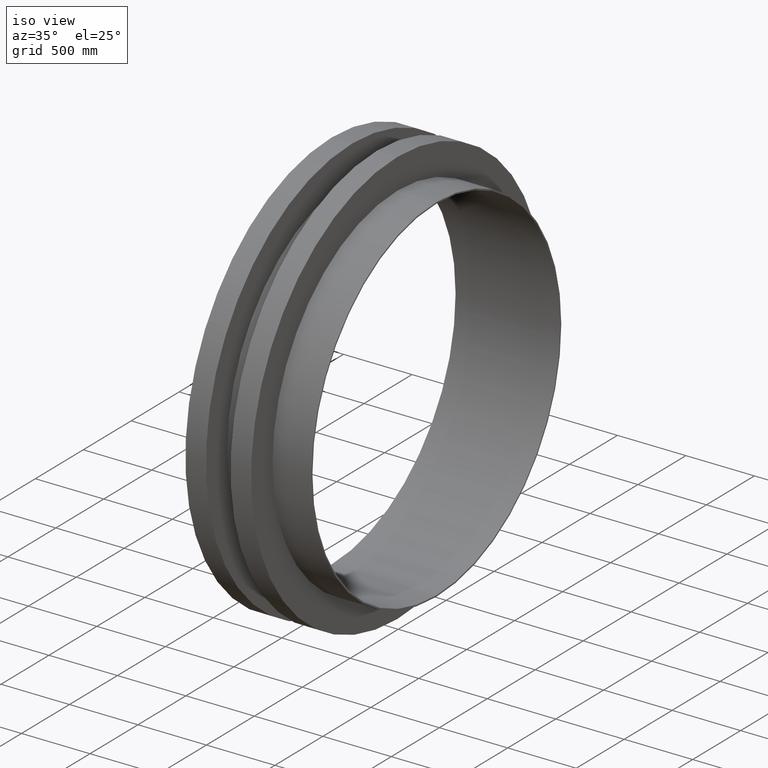
[diagram: clean part render]
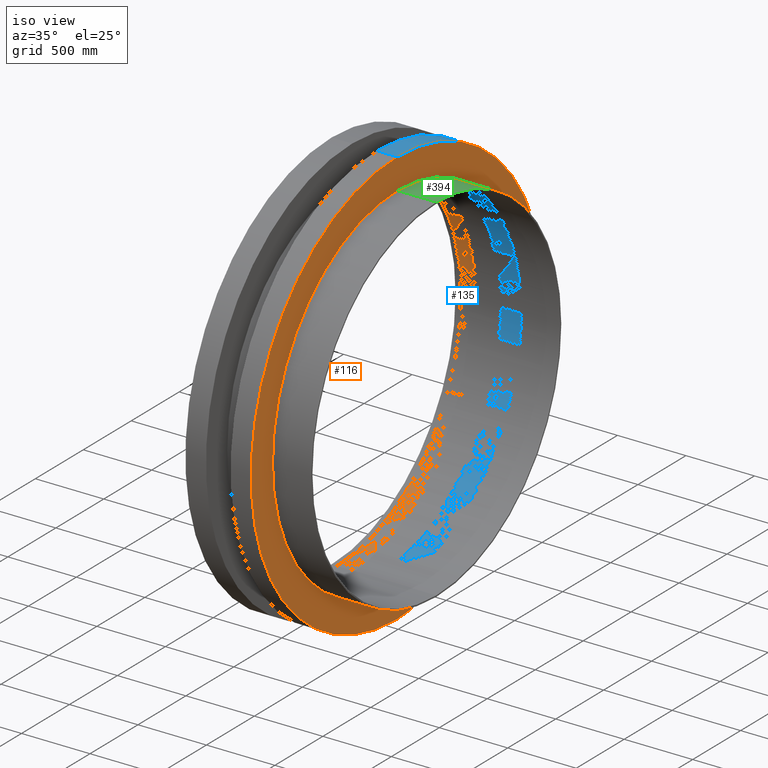
[diagram: same view with three faces highlighted in distinct colors, each labeled with its STEP entity id]
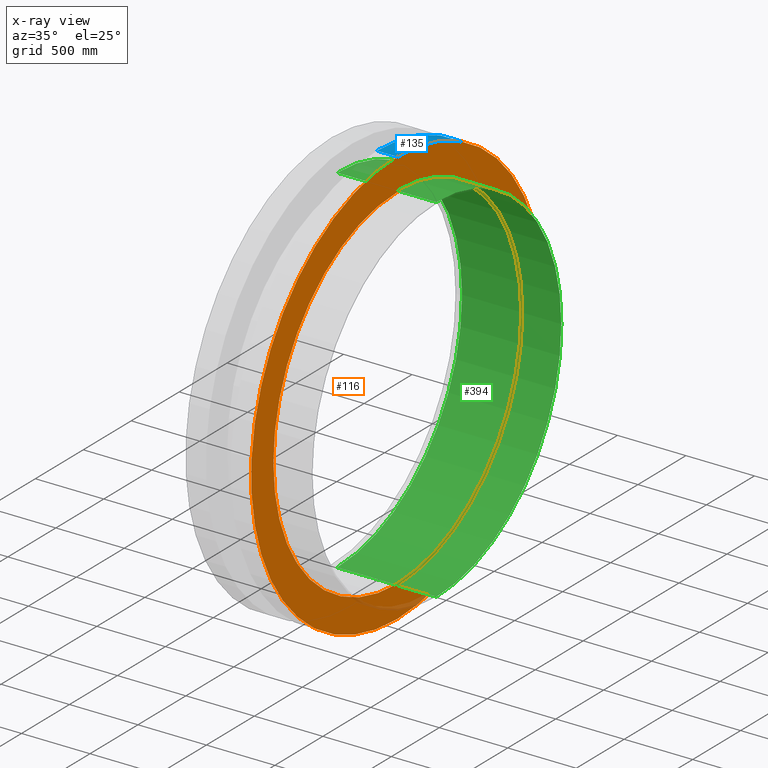
[diagram: x-ray of the same camera — body ghosted, the three highlighted faces saturated]
A machine part, iso view with three faces highlighted in distinct colors.
The next image is the same camera in x-ray (body ghosted, the three faces saturated) — at least one of them is partly hidden behind the body in this view.
Their STEP definitions:

[orange] entity #116 — the highlighted planar face has unit normal (1, 0, 0).
#50 = PLANE ( 'NONE',  #501 ) ;
#85 = VERTEX_POINT ( 'NONE', #159 ) ;
#116 = ADVANCED_FACE ( 'NONE', ( #585, #306 ), #50, .T. ) ;
#119 = EDGE_LOOP ( 'NONE', ( #249, #196 ) ) ;
#146 = AXIS2_PLACEMENT_3D ( 'NONE', #596, #278, #434 ) ;
#147 = VERTEX_POINT ( 'NONE', #366 ) ;
#159 = CARTESIAN_POINT ( 'NONE',  ( -910.0000000000000000, 114.4108509701296157, 1453.768383917999472 ) ) ;
#176 = CIRCLE ( 'NONE', #146, 1292.500000000000000 ) ;
#196 = ORIENTED_EDGE ( 'NONE', *, *, #269, .F. ) ;
#204 = DIRECTION ( 'NONE',  ( 1.000000000000000000, 0.000000000000000000, 0.000000000000000000 ) ) ;
#233 = CIRCLE ( 'NONE', #340, 1525.000000000000000 ) ;
#239 = VERTEX_POINT ( 'NONE', #319 ) ;
#249 = ORIENTED_EDGE ( 'NONE', *, *, #280, .F. ) ;
#269 = EDGE_CURVE ( 'NONE', #239, #147, #176, .T. ) ;
#278 = DIRECTION ( 'NONE',  ( 1.000000000000000000, 0.000000000000000000, 0.000000000000000000 ) ) ;
#280 = EDGE_CURVE ( 'NONE', #147, #239, #372, .T. ) ;
#290 = CIRCLE ( 'NONE', #688, 1525.000000000000000 ) ;
#306 = FACE_OUTER_BOUND ( 'NONE', #597, .T. ) ;
#319 = CARTESIAN_POINT ( 'NONE',  ( -910.0000000000000000, 114.4108509701295873, 1221.268383917999699 ) ) ;
#340 = AXIS2_PLACEMENT_3D ( 'NONE', #500, #671, #346 ) ;
#346 = DIRECTION ( 'NONE',  ( 0.000000000000000000, 0.000000000000000000, -1.000000000000000000 ) ) ;
#366 = CARTESIAN_POINT ( 'NONE',  ( -910.0000000000000000, 114.4108509701294309, -1363.731616082000301 ) ) ;
#372 = CIRCLE ( 'NONE', #484, 1292.500000000000000 ) ;
#423 = ORIENTED_EDGE ( 'NONE', *, *, #627, .T. ) ;
#432 = DIRECTION ( 'NONE',  ( 1.000000000000000000, 0.000000000000000000, 0.000000000000000000 ) ) ;
#434 = DIRECTION ( 'NONE',  ( 0.000000000000000000, 0.000000000000000000, -1.000000000000000000 ) ) ;
#456 = VERTEX_POINT ( 'NONE', #626 ) ;
#465 = DIRECTION ( 'NONE',  ( 1.000000000000000000, 0.000000000000000000, 0.000000000000000000 ) ) ;
#484 = AXIS2_PLACEMENT_3D ( 'NONE', #663, #432, #531 ) ;
#500 = CARTESIAN_POINT ( 'NONE',  ( -910.0000000000000000, 114.4108509701294309, -71.23161608200025796 ) ) ;
#501 = AXIS2_PLACEMENT_3D ( 'NONE', #517, #204, #575 ) ;
#516 = DIRECTION ( 'NONE',  ( 0.000000000000000000, 0.000000000000000000, -1.000000000000000000 ) ) ;
#517 = CARTESIAN_POINT ( 'NONE',  ( -910.0000000000000000, 114.4108509701294309, -71.23161608200025796 ) ) ;
#531 = DIRECTION ( 'NONE',  ( 0.000000000000000000, 0.000000000000000000, -1.000000000000000000 ) ) ;
#532 = EDGE_CURVE ( 'NONE', #456, #85, #233, .T. ) ;
#536 = ORIENTED_EDGE ( 'NONE', *, *, #532, .T. ) ;
#575 = DIRECTION ( 'NONE',  ( 0.000000000000000000, 0.000000000000000000, -1.000000000000000000 ) ) ;
#585 = FACE_BOUND ( 'NONE', #119, .T. ) ;
#596 = CARTESIAN_POINT ( 'NONE',  ( -910.0000000000000000, 114.4108509701294309, -71.23161608200025796 ) ) ;
#597 = EDGE_LOOP ( 'NONE', ( #536, #423 ) ) ;
#626 = CARTESIAN_POINT ( 'NONE',  ( -910.0000000000000000, 114.4108509701294309, -1596.231616082000301 ) ) ;
#627 = EDGE_CURVE ( 'NONE', #85, #456, #290, .T. ) ;
#638 = CARTESIAN_POINT ( 'NONE',  ( -910.0000000000000000, 114.4108509701294309, -71.23161608200025796 ) ) ;
#663 = CARTESIAN_POINT ( 'NONE',  ( -910.0000000000000000, 114.4108509701294309, -71.23161608200025796 ) ) ;
#671 = DIRECTION ( 'NONE',  ( 1.000000000000000000, 0.000000000000000000, 0.000000000000000000 ) ) ;
#688 = AXIS2_PLACEMENT_3D ( 'NONE', #638, #465, #516 ) ;

[blue] entity #135 — the highlighted cylindrical surface (partial cylindrical patch) has radius 1525 mm, axis along (1, 0, 0).
#20 = CARTESIAN_POINT ( 'NONE',  ( -1060.000000000000000, 114.4108509701294309, -1596.231616082000301 ) ) ;
#23 = DIRECTION ( 'NONE',  ( 0.000000000000000000, 0.000000000000000000, -1.000000000000000000 ) ) ;
#85 = VERTEX_POINT ( 'NONE', #159 ) ;
#91 = CIRCLE ( 'NONE', #188, 1525.000000000000000 ) ;
#114 = CARTESIAN_POINT ( 'NONE',  ( -1060.000000000000000, 114.4108509701294309, -71.23161608200025796 ) ) ;
#125 = LINE ( 'NONE', #20, #257 ) ;
#130 = VERTEX_POINT ( 'NONE', #691 ) ;
#135 = ADVANCED_FACE ( 'NONE', ( #639 ), #151, .T. ) ;
#138 = CARTESIAN_POINT ( 'NONE',  ( -1060.000000000000000, 114.4108509701296157, 1453.768383917999472 ) ) ;
#139 = ORIENTED_EDGE ( 'NONE', *, *, #682, .T. ) ;
#151 = CYLINDRICAL_SURFACE ( 'NONE', #594, 1525.000000000000000 ) ;
#155 = CARTESIAN_POINT ( 'NONE',  ( -1060.000000000000000, 114.4108509701294309, -71.23161608200025796 ) ) ;
#159 = CARTESIAN_POINT ( 'NONE',  ( -910.0000000000000000, 114.4108509701296157, 1453.768383917999472 ) ) ;
#167 = DIRECTION ( 'NONE',  ( 1.000000000000000000, 0.000000000000000000, 0.000000000000000000 ) ) ;
#172 = EDGE_LOOP ( 'NONE', ( #284, #139, #194, #553 ) ) ;
#181 = CARTESIAN_POINT ( 'NONE',  ( -1060.000000000000000, 114.4108509701294309, -1596.231616082000301 ) ) ;
#186 = EDGE_CURVE ( 'NONE', #539, #456, #125, .T. ) ;
#188 = AXIS2_PLACEMENT_3D ( 'NONE', #114, #167, #23 ) ;
#194 = ORIENTED_EDGE ( 'NONE', *, *, #532, .F. ) ;
#233 = CIRCLE ( 'NONE', #340, 1525.000000000000000 ) ;
#257 = VECTOR ( 'NONE', #380, 1000.000000000000000 ) ;
#284 = ORIENTED_EDGE ( 'NONE', *, *, #359, .T. ) ;
#314 = DIRECTION ( 'NONE',  ( 0.000000000000000000, 0.000000000000000000, -1.000000000000000000 ) ) ;
#340 = AXIS2_PLACEMENT_3D ( 'NONE', #500, #671, #346 ) ;
#346 = DIRECTION ( 'NONE',  ( 0.000000000000000000, 0.000000000000000000, -1.000000000000000000 ) ) ;
#359 = EDGE_CURVE ( 'NONE', #539, #130, #91, .T. ) ;
#380 = DIRECTION ( 'NONE',  ( 1.000000000000000000, 0.000000000000000000, 0.000000000000000000 ) ) ;
#451 = VECTOR ( 'NONE', #523, 1000.000000000000000 ) ;
#456 = VERTEX_POINT ( 'NONE', #626 ) ;
#500 = CARTESIAN_POINT ( 'NONE',  ( -910.0000000000000000, 114.4108509701294309, -71.23161608200025796 ) ) ;
#523 = DIRECTION ( 'NONE',  ( 1.000000000000000000, 0.000000000000000000, 0.000000000000000000 ) ) ;
#532 = EDGE_CURVE ( 'NONE', #456, #85, #233, .T. ) ;
#539 = VERTEX_POINT ( 'NONE', #181 ) ;
#553 = ORIENTED_EDGE ( 'NONE', *, *, #186, .F. ) ;
#594 = AXIS2_PLACEMENT_3D ( 'NONE', #155, #642, #314 ) ;
#626 = CARTESIAN_POINT ( 'NONE',  ( -910.0000000000000000, 114.4108509701294309, -1596.231616082000301 ) ) ;
#639 = FACE_OUTER_BOUND ( 'NONE', #172, .T. ) ;
#642 = DIRECTION ( 'NONE',  ( 1.000000000000000000, 0.000000000000000000, 0.000000000000000000 ) ) ;
#645 = LINE ( 'NONE', #138, #451 ) ;
#671 = DIRECTION ( 'NONE',  ( 1.000000000000000000, 0.000000000000000000, 0.000000000000000000 ) ) ;
#682 = EDGE_CURVE ( 'NONE', #130, #85, #645, .T. ) ;
#691 = CARTESIAN_POINT ( 'NONE',  ( -1060.000000000000000, 114.4108509701296157, 1453.768383917999472 ) ) ;

[green] entity #394 — the highlighted cylindrical surface (partial cylindrical patch) has radius 1302.5 mm, axis along (1, 0, 0).
#7 = EDGE_CURVE ( 'NONE', #45, #505, #416, .T. ) ;
#21 = ORIENTED_EDGE ( 'NONE', *, *, #550, .T. ) ;
#39 = AXIS2_PLACEMENT_3D ( 'NONE', #391, #617, #193 ) ;
#45 = VERTEX_POINT ( 'NONE', #258 ) ;
#69 = CYLINDRICAL_SURFACE ( 'NONE', #667, 1302.500000000000000 ) ;
#76 = EDGE_LOOP ( 'NONE', ( #631, #142, #21, #232 ) ) ;
#110 = LINE ( 'NONE', #171, #604 ) ;
#142 = ORIENTED_EDGE ( 'NONE', *, *, #7, .T. ) ;
#171 = CARTESIAN_POINT ( 'NONE',  ( -1350.000000000000909, 114.4108509701294594, -1373.731616082000755 ) ) ;
#185 = VERTEX_POINT ( 'NONE', #603 ) ;
#193 = DIRECTION ( 'NONE',  ( 0.000000000000000000, 0.000000000000000000, -1.000000000000000000 ) ) ;
#215 = EDGE_CURVE ( 'NONE', #244, #185, #110, .T. ) ;
#228 = CARTESIAN_POINT ( 'NONE',  ( -1350.000000000000909, 114.4108509701294594, -1373.731616082000755 ) ) ;
#232 = ORIENTED_EDGE ( 'NONE', *, *, #215, .F. ) ;
#244 = VERTEX_POINT ( 'NONE', #228 ) ;
#258 = CARTESIAN_POINT ( 'NONE',  ( -1350.000000000000909, 114.4108509701296157, 1231.268383917999245 ) ) ;
#264 = DIRECTION ( 'NONE',  ( 1.000000000000000000, 2.366582715663035416E-30, 0.000000000000000000 ) ) ;
#267 = AXIS2_PLACEMENT_3D ( 'NONE', #635, #264, #457 ) ;
#283 = CARTESIAN_POINT ( 'NONE',  ( -1350.000000000000909, 114.4108509701294594, -71.23161608200079797 ) ) ;
#287 = DIRECTION ( 'NONE',  ( 1.000000000000000000, 2.366582715663035416E-30, 0.000000000000000000 ) ) ;
#331 = DIRECTION ( 'NONE',  ( 1.000000000000000000, 2.366582715663035416E-30, 0.000000000000000000 ) ) ;
#362 = CARTESIAN_POINT ( 'NONE',  ( -1350.000000000000909, 114.4108509701296157, 1231.268383917999245 ) ) ;
#391 = CARTESIAN_POINT ( 'NONE',  ( -625.3061357870070651, 114.4108509701294594, -71.23161608200013006 ) ) ;
#393 = CIRCLE ( 'NONE', #267, 1302.500000000000000 ) ;
#394 = ADVANCED_FACE ( 'NONE', ( #541 ), #69, .T. ) ;
#416 = LINE ( 'NONE', #362, #623 ) ;
#448 = CARTESIAN_POINT ( 'NONE',  ( -625.3061357870070651, 114.4108509701296157, 1231.268383917999927 ) ) ;
#457 = DIRECTION ( 'NONE',  ( 0.000000000000000000, 0.000000000000000000, -1.000000000000000000 ) ) ;
#493 = DIRECTION ( 'NONE',  ( 0.000000000000000000, 0.000000000000000000, -1.000000000000000000 ) ) ;
#505 = VERTEX_POINT ( 'NONE', #448 ) ;
#541 = FACE_OUTER_BOUND ( 'NONE', #76, .T. ) ;
#550 = EDGE_CURVE ( 'NONE', #505, #185, #678, .T. ) ;
#603 = CARTESIAN_POINT ( 'NONE',  ( -625.3061357870070651, 114.4108509701294594, -1373.731616082000073 ) ) ;
#604 = VECTOR ( 'NONE', #331, 1000.000000000000000 ) ;
#617 = DIRECTION ( 'NONE',  ( -1.000000000000000000, -2.366582715663035416E-30, -0.000000000000000000 ) ) ;
#623 = VECTOR ( 'NONE', #687, 1000.000000000000000 ) ;
#631 = ORIENTED_EDGE ( 'NONE', *, *, #674, .T. ) ;
#635 = CARTESIAN_POINT ( 'NONE',  ( -1350.000000000000909, 114.4108509701294594, -71.23161608200079797 ) ) ;
#667 = AXIS2_PLACEMENT_3D ( 'NONE', #283, #287, #493 ) ;
#674 = EDGE_CURVE ( 'NONE', #244, #45, #393, .T. ) ;
#678 = CIRCLE ( 'NONE', #39, 1302.500000000000000 ) ;
#687 = DIRECTION ( 'NONE',  ( 1.000000000000000000, 2.366582715663035416E-30, 0.000000000000000000 ) ) ;